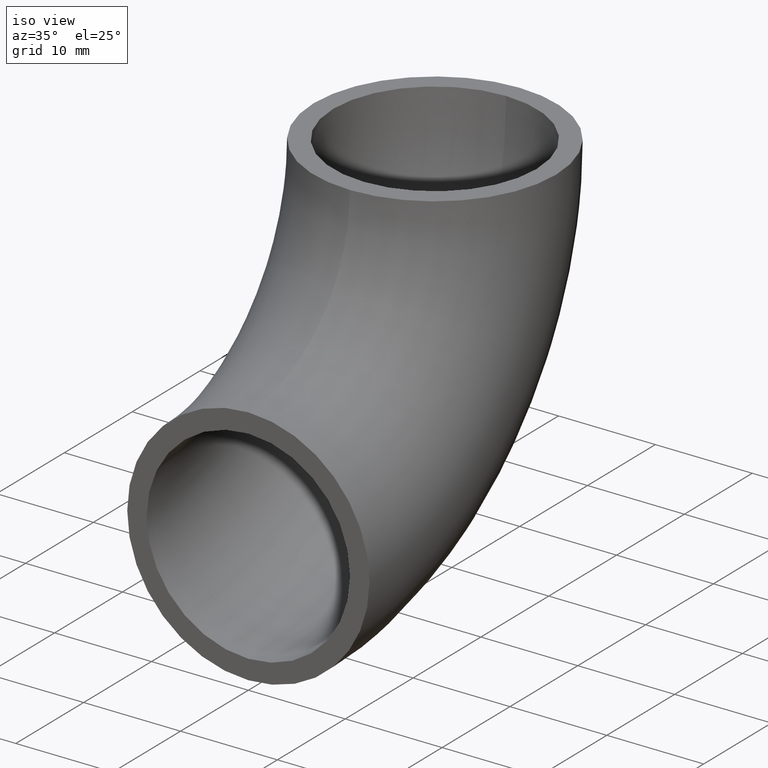
[diagram: clean part render]
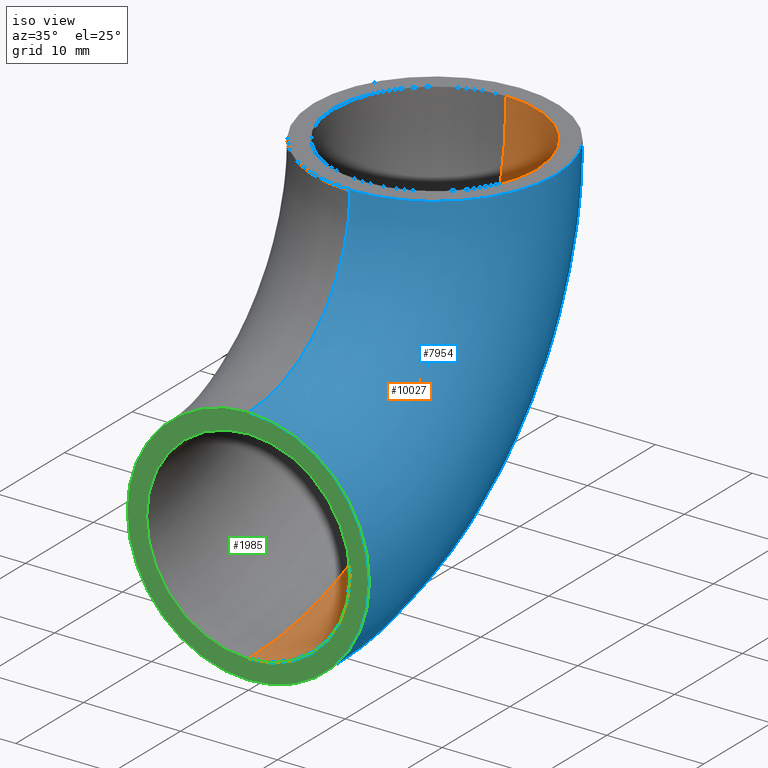
[diagram: same view with three faces highlighted in distinct colors, each labeled with its STEP entity id]
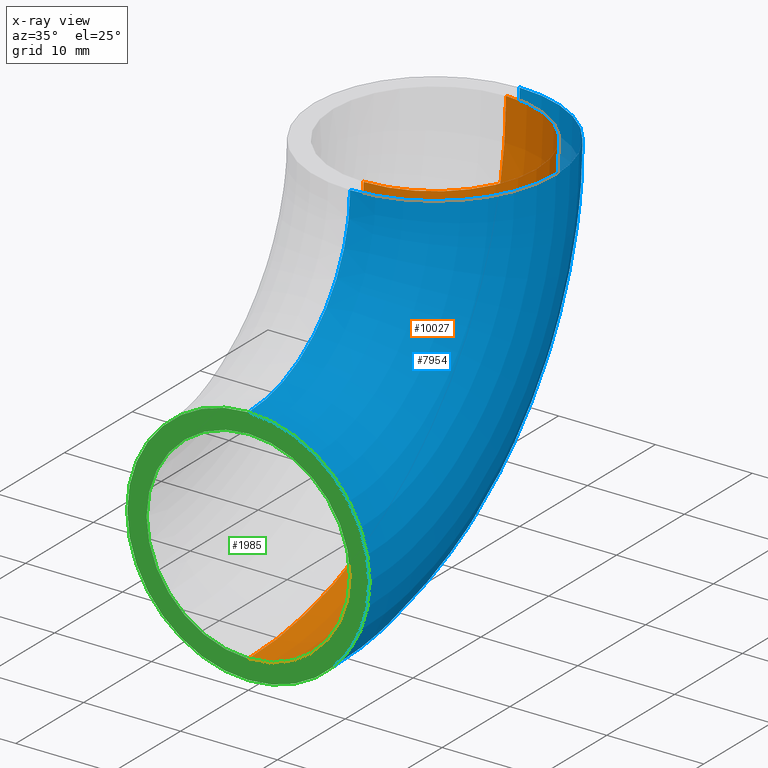
[diagram: x-ray of the same camera — body ghosted, the three highlighted faces saturated]
A machine part, iso view with three faces highlighted in distinct colors.
The next image is the same camera in x-ray (body ghosted, the three faces saturated) — at least one of them is partly hidden behind the body in this view.
Their STEP definitions:

[orange] entity #10027 — the highlighted toroidal blend (fillet) surface has major radius 27.5 mm and minor (blend) radius 10.5 mm.
#432 = EDGE_CURVE ( 'NONE', #8759, #9448, #10521, .T. ) ;
#529 = EDGE_CURVE ( 'NONE', #4546, #645, #7758, .T. ) ;
#645 = VERTEX_POINT ( 'NONE', #4021 ) ;
#1205 = DIRECTION ( 'NONE',  ( 0.0000000000000000000, 0.0000000000000000000, 1.000000000000000000 ) ) ;
#1570 = TOROIDAL_SURFACE ( 'NONE', #2687, 27.50000000000000000, 10.50000000000000000 ) ;
#1613 = CIRCLE ( 'NONE', #4355, 38.00000000000000000 ) ;
#1717 = CARTESIAN_POINT ( 'NONE',  ( 0.0000000000000000000, 0.0000000000000000000, -27.50000000000000000 ) ) ;
#1944 = CARTESIAN_POINT ( 'NONE',  ( 0.0000000000000000000, 27.50000000000000000, -1.683889348827610700E-015 ) ) ;
#2084 = DIRECTION ( 'NONE',  ( -1.000000000000000000, -0.0000000000000000000, -0.0000000000000000000 ) ) ;
#2416 = CIRCLE ( 'NONE', #11946, 17.00000000000000000 ) ;
#2687 = AXIS2_PLACEMENT_3D ( 'NONE', #8507, #2084, #1205 ) ;
#2879 = DIRECTION ( 'NONE',  ( 0.0000000000000000000, -1.000000000000000000, 6.123233995736766000E-017 ) ) ;
#3678 = ORIENTED_EDGE ( 'NONE', *, *, #529, .T. ) ;
#3931 = DIRECTION ( 'NONE',  ( -1.000000000000000000, -0.0000000000000000000, -0.0000000000000000000 ) ) ;
#4021 = CARTESIAN_POINT ( 'NONE',  ( 0.0000000000000000000, 38.00000000000000000, -2.326828918379971000E-015 ) ) ;
#4043 = EDGE_LOOP ( 'NONE', ( #3678, #6907, #7576, #9847 ) ) ;
#4355 = AXIS2_PLACEMENT_3D ( 'NONE', #9456, #3931, #4822 ) ;
#4546 = VERTEX_POINT ( 'NONE', #6584 ) ;
#4613 = CARTESIAN_POINT ( 'NONE',  ( 0.0000000000000000000, 0.0000000000000000000, -38.00000000000000000 ) ) ;
#4822 = DIRECTION ( 'NONE',  ( 0.0000000000000000000, 0.0000000000000000000, 1.000000000000000000 ) ) ;
#5476 = FACE_OUTER_BOUND ( 'NONE', #4043, .T. ) ;
#5666 = EDGE_CURVE ( 'NONE', #645, #9448, #1613, .T. ) ;
#6266 = DIRECTION ( 'NONE',  ( 0.0000000000000000000, 1.000000000000000000, 0.0000000000000000000 ) ) ;
#6308 = DIRECTION ( 'NONE',  ( 0.0000000000000000000, 0.0000000000000000000, 1.000000000000000000 ) ) ;
#6584 = CARTESIAN_POINT ( 'NONE',  ( 0.0000000000000000000, 17.00000000000000000, -1.040949779275250100E-015 ) ) ;
#6611 = AXIS2_PLACEMENT_3D ( 'NONE', #1944, #8403, #2879 ) ;
#6904 = CARTESIAN_POINT ( 'NONE',  ( 1.285879139104720800E-015, 0.0000000000000000000, 0.0000000000000000000 ) ) ;
#6907 = ORIENTED_EDGE ( 'NONE', *, *, #5666, .T. ) ;
#7267 = CARTESIAN_POINT ( 'NONE',  ( 0.0000000000000000000, 0.0000000000000000000, -17.00000000000000000 ) ) ;
#7461 = AXIS2_PLACEMENT_3D ( 'NONE', #1717, #6266, #6308 ) ;
#7576 = ORIENTED_EDGE ( 'NONE', *, *, #432, .F. ) ;
#7758 = CIRCLE ( 'NONE', #6611, 10.49999999999999800 ) ;
#7826 = DIRECTION ( 'NONE',  ( -1.000000000000000000, -0.0000000000000000000, -0.0000000000000000000 ) ) ;
#8403 = DIRECTION ( 'NONE',  ( 0.0000000000000000000, 6.123233995736766000E-017, 1.000000000000000000 ) ) ;
#8507 = CARTESIAN_POINT ( 'NONE',  ( 0.0000000000000000000, 0.0000000000000000000, 0.0000000000000000000 ) ) ;
#8739 = DIRECTION ( 'NONE',  ( 0.0000000000000000000, 0.0000000000000000000, 1.000000000000000000 ) ) ;
#8759 = VERTEX_POINT ( 'NONE', #7267 ) ;
#9448 = VERTEX_POINT ( 'NONE', #4613 ) ;
#9456 = CARTESIAN_POINT ( 'NONE',  ( 0.0000000000000000000, 0.0000000000000000000, 0.0000000000000000000 ) ) ;
#9847 = ORIENTED_EDGE ( 'NONE', *, *, #11047, .F. ) ;
#10027 = ADVANCED_FACE ( 'NONE', ( #5476 ), #1570, .F. ) ;
#10521 = CIRCLE ( 'NONE', #7461, 10.49999999999999800 ) ;
#11047 = EDGE_CURVE ( 'NONE', #4546, #8759, #2416, .T. ) ;
#11946 = AXIS2_PLACEMENT_3D ( 'NONE', #6904, #7826, #8739 ) ;

[blue] entity #7954 — the highlighted toroidal blend (fillet) surface has major radius 27.5 mm and minor (blend) radius 12.5 mm.
#181 = CARTESIAN_POINT ( 'NONE',  ( 1.530808498934191500E-015, 0.0000000000000000000, 0.0000000000000000000 ) ) ;
#596 = EDGE_CURVE ( 'NONE', #7515, #4269, #3018, .T. ) ;
#597 = CARTESIAN_POINT ( 'NONE',  ( 0.0000000000000000000, 15.00000000000000000, -9.184850993605147900E-016 ) ) ;
#823 = ORIENTED_EDGE ( 'NONE', *, *, #2772, .F. ) ;
#2300 = AXIS2_PLACEMENT_3D ( 'NONE', #7046, #8915, #4264 ) ;
#2772 = EDGE_CURVE ( 'NONE', #4965, #9446, #5962, .T. ) ;
#3018 = CIRCLE ( 'NONE', #3377, 12.50000000000000000 ) ;
#3138 = TOROIDAL_SURFACE ( 'NONE', #2300, 27.50000000000000000, 12.50000000000000000 ) ;
#3196 = DIRECTION ( 'NONE',  ( 0.0000000000000000000, -1.000000000000000000, 6.123233995736766000E-017 ) ) ;
#3377 = AXIS2_PLACEMENT_3D ( 'NONE', #10433, #5882, #7708 ) ;
#4003 = CARTESIAN_POINT ( 'NONE',  ( 0.0000000000000000000, 27.50000000000000000, -1.683889348827610700E-015 ) ) ;
#4264 = DIRECTION ( 'NONE',  ( 0.0000000000000000000, 0.0000000000000000000, 1.000000000000000000 ) ) ;
#4269 = VERTEX_POINT ( 'NONE', #11862 ) ;
#4397 = CARTESIAN_POINT ( 'NONE',  ( 0.0000000000000000000, 0.0000000000000000000, 0.0000000000000000000 ) ) ;
#4849 = ORIENTED_EDGE ( 'NONE', *, *, #596, .T. ) ;
#4965 = VERTEX_POINT ( 'NONE', #597 ) ;
#5018 = DIRECTION ( 'NONE',  ( 0.0000000000000000000, 6.123233995736766000E-017, 1.000000000000000000 ) ) ;
#5023 = FACE_OUTER_BOUND ( 'NONE', #11431, .T. ) ;
#5257 = EDGE_CURVE ( 'NONE', #4965, #7515, #9983, .T. ) ;
#5670 = AXIS2_PLACEMENT_3D ( 'NONE', #4003, #5018, #3196 ) ;
#5882 = DIRECTION ( 'NONE',  ( 0.0000000000000000000, 1.000000000000000000, 0.0000000000000000000 ) ) ;
#5962 = CIRCLE ( 'NONE', #5670, 12.50000000000000000 ) ;
#6017 = CARTESIAN_POINT ( 'NONE',  ( 0.0000000000000000000, 0.0000000000000000000, -15.00000000000000000 ) ) ;
#6636 = DIRECTION ( 'NONE',  ( -1.000000000000000000, -0.0000000000000000000, -0.0000000000000000000 ) ) ;
#6830 = DIRECTION ( 'NONE',  ( -1.000000000000000000, -0.0000000000000000000, -0.0000000000000000000 ) ) ;
#7046 = CARTESIAN_POINT ( 'NONE',  ( 0.0000000000000000000, 0.0000000000000000000, 0.0000000000000000000 ) ) ;
#7515 = VERTEX_POINT ( 'NONE', #6017 ) ;
#7708 = DIRECTION ( 'NONE',  ( 0.0000000000000000000, 0.0000000000000000000, 1.000000000000000000 ) ) ;
#7954 = ADVANCED_FACE ( 'NONE', ( #5023 ), #3138, .T. ) ;
#8407 = EDGE_CURVE ( 'NONE', #9446, #4269, #8482, .T. ) ;
#8466 = AXIS2_PLACEMENT_3D ( 'NONE', #181, #6636, #8502 ) ;
#8482 = CIRCLE ( 'NONE', #10490, 40.00000000000000000 ) ;
#8502 = DIRECTION ( 'NONE',  ( 0.0000000000000000000, 0.0000000000000000000, 1.000000000000000000 ) ) ;
#8915 = DIRECTION ( 'NONE',  ( -1.000000000000000000, -0.0000000000000000000, -0.0000000000000000000 ) ) ;
#9224 = CARTESIAN_POINT ( 'NONE',  ( 0.0000000000000000000, 40.00000000000000000, -2.449293598294706500E-015 ) ) ;
#9446 = VERTEX_POINT ( 'NONE', #9224 ) ;
#9983 = CIRCLE ( 'NONE', #8466, 15.00000000000000000 ) ;
#10131 = ORIENTED_EDGE ( 'NONE', *, *, #8407, .F. ) ;
#10160 = ORIENTED_EDGE ( 'NONE', *, *, #5257, .T. ) ;
#10339 = DIRECTION ( 'NONE',  ( 0.0000000000000000000, 0.0000000000000000000, 1.000000000000000000 ) ) ;
#10433 = CARTESIAN_POINT ( 'NONE',  ( 0.0000000000000000000, 0.0000000000000000000, -27.50000000000000000 ) ) ;
#10490 = AXIS2_PLACEMENT_3D ( 'NONE', #4397, #6830, #10339 ) ;
#11431 = EDGE_LOOP ( 'NONE', ( #10131, #823, #10160, #4849 ) ) ;
#11862 = CARTESIAN_POINT ( 'NONE',  ( 0.0000000000000000000, 0.0000000000000000000, -40.00000000000000000 ) ) ;

[green] entity #1985 — the highlighted planar face has unit normal (0, 1, 0).
#432 = EDGE_CURVE ( 'NONE', #8759, #9448, #10521, .T. ) ;
#596 = EDGE_CURVE ( 'NONE', #7515, #4269, #3018, .T. ) ;
#699 = AXIS2_PLACEMENT_3D ( 'NONE', #11522, #4066, #2245 ) ;
#726 = CARTESIAN_POINT ( 'NONE',  ( 0.0000000000000000000, 0.0000000000000000000, -27.50000000000000000 ) ) ;
#1717 = CARTESIAN_POINT ( 'NONE',  ( 0.0000000000000000000, 0.0000000000000000000, -27.50000000000000000 ) ) ;
#1969 = ORIENTED_EDGE ( 'NONE', *, *, #596, .F. ) ;
#1985 = ADVANCED_FACE ( 'NONE', ( #5034, #9645 ), #10872, .F. ) ;
#2245 = DIRECTION ( 'NONE',  ( 0.0000000000000000000, 0.0000000000000000000, 1.000000000000000000 ) ) ;
#3018 = CIRCLE ( 'NONE', #3377, 12.50000000000000000 ) ;
#3377 = AXIS2_PLACEMENT_3D ( 'NONE', #10433, #5882, #7708 ) ;
#3706 = AXIS2_PLACEMENT_3D ( 'NONE', #9957, #6095, #10885 ) ;
#3709 = EDGE_LOOP ( 'NONE', ( #6152, #5685 ) ) ;
#4066 = DIRECTION ( 'NONE',  ( 0.0000000000000000000, 1.000000000000000000, 0.0000000000000000000 ) ) ;
#4269 = VERTEX_POINT ( 'NONE', #11862 ) ;
#4613 = CARTESIAN_POINT ( 'NONE',  ( 0.0000000000000000000, 0.0000000000000000000, -38.00000000000000000 ) ) ;
#5034 = FACE_BOUND ( 'NONE', #3709, .T. ) ;
#5685 = ORIENTED_EDGE ( 'NONE', *, *, #11440, .T. ) ;
#5882 = DIRECTION ( 'NONE',  ( 0.0000000000000000000, 1.000000000000000000, 0.0000000000000000000 ) ) ;
#6017 = CARTESIAN_POINT ( 'NONE',  ( 0.0000000000000000000, 0.0000000000000000000, -15.00000000000000000 ) ) ;
#6095 = DIRECTION ( 'NONE',  ( 0.0000000000000000000, 1.000000000000000000, 0.0000000000000000000 ) ) ;
#6152 = ORIENTED_EDGE ( 'NONE', *, *, #432, .T. ) ;
#6266 = DIRECTION ( 'NONE',  ( 0.0000000000000000000, 1.000000000000000000, 0.0000000000000000000 ) ) ;
#6308 = DIRECTION ( 'NONE',  ( 0.0000000000000000000, 0.0000000000000000000, 1.000000000000000000 ) ) ;
#7050 = AXIS2_PLACEMENT_3D ( 'NONE', #726, #7124, #11630 ) ;
#7124 = DIRECTION ( 'NONE',  ( 0.0000000000000000000, 1.000000000000000000, 0.0000000000000000000 ) ) ;
#7180 = CIRCLE ( 'NONE', #699, 12.50000000000000000 ) ;
#7267 = CARTESIAN_POINT ( 'NONE',  ( 0.0000000000000000000, 0.0000000000000000000, -17.00000000000000000 ) ) ;
#7318 = EDGE_LOOP ( 'NONE', ( #1969, #9665 ) ) ;
#7461 = AXIS2_PLACEMENT_3D ( 'NONE', #1717, #6266, #6308 ) ;
#7515 = VERTEX_POINT ( 'NONE', #6017 ) ;
#7708 = DIRECTION ( 'NONE',  ( 0.0000000000000000000, 0.0000000000000000000, 1.000000000000000000 ) ) ;
#8185 = EDGE_CURVE ( 'NONE', #4269, #7515, #7180, .T. ) ;
#8759 = VERTEX_POINT ( 'NONE', #7267 ) ;
#9448 = VERTEX_POINT ( 'NONE', #4613 ) ;
#9502 = CIRCLE ( 'NONE', #3706, 10.49999999999999800 ) ;
#9645 = FACE_OUTER_BOUND ( 'NONE', #7318, .T. ) ;
#9665 = ORIENTED_EDGE ( 'NONE', *, *, #8185, .F. ) ;
#9957 = CARTESIAN_POINT ( 'NONE',  ( 0.0000000000000000000, 0.0000000000000000000, -27.50000000000000000 ) ) ;
#10433 = CARTESIAN_POINT ( 'NONE',  ( 0.0000000000000000000, 0.0000000000000000000, -27.50000000000000000 ) ) ;
#10521 = CIRCLE ( 'NONE', #7461, 10.49999999999999800 ) ;
#10872 = PLANE ( 'NONE',  #7050 ) ;
#10885 = DIRECTION ( 'NONE',  ( 0.0000000000000000000, 0.0000000000000000000, 1.000000000000000000 ) ) ;
#11440 = EDGE_CURVE ( 'NONE', #9448, #8759, #9502, .T. ) ;
#11522 = CARTESIAN_POINT ( 'NONE',  ( 0.0000000000000000000, 0.0000000000000000000, -27.50000000000000000 ) ) ;
#11630 = DIRECTION ( 'NONE',  ( 0.0000000000000000000, -0.0000000000000000000, 1.000000000000000000 ) ) ;
#11862 = CARTESIAN_POINT ( 'NONE',  ( 0.0000000000000000000, 0.0000000000000000000, -40.00000000000000000 ) ) ;